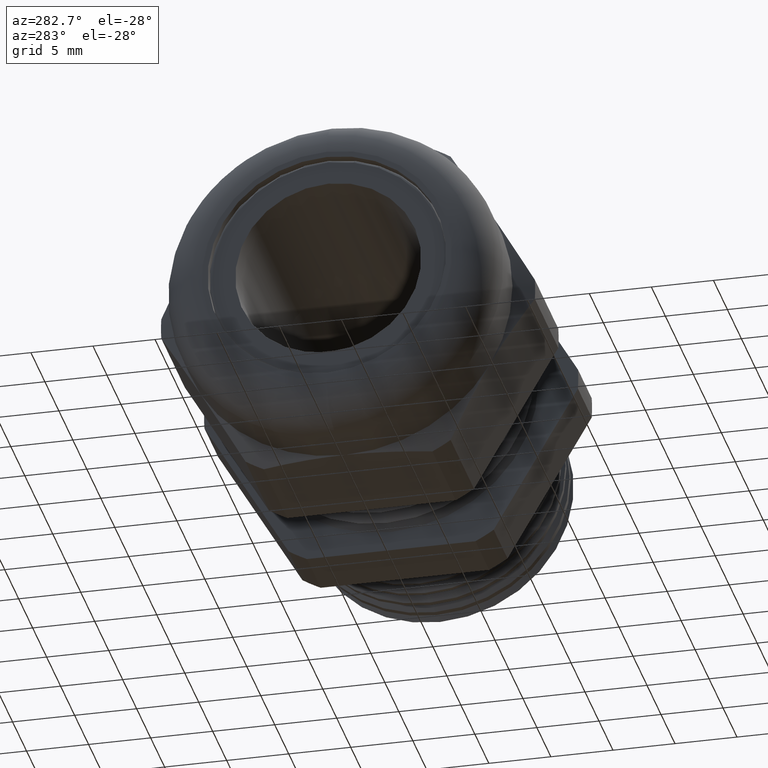
[diagram: clean part render]
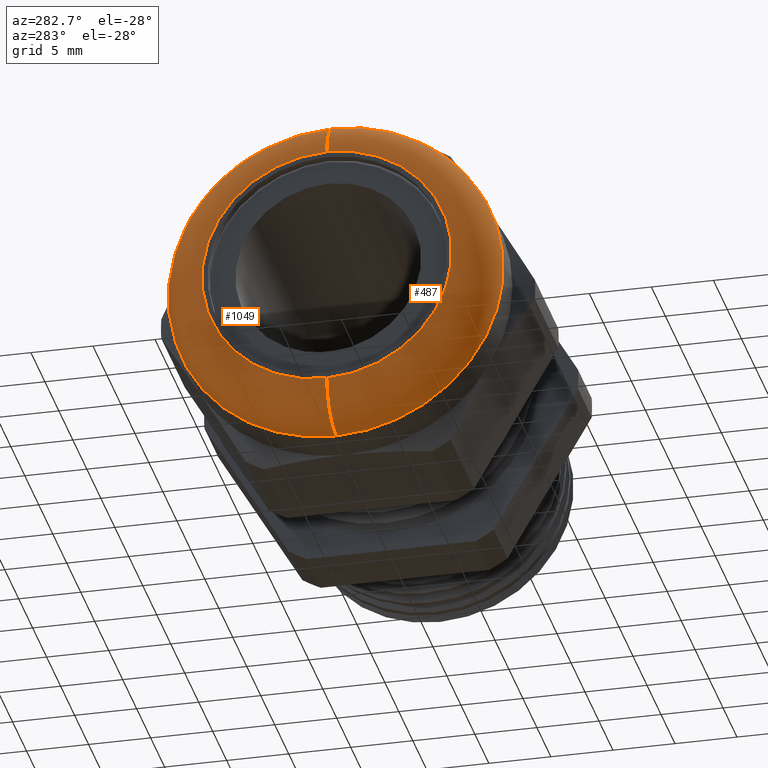
[diagram: same view with one multi-face feature highlighted, each face labeled with its STEP entity id]
A machine part, auxiliary view. The highlighted faces form ONE feature: a constant-radius fillet chain: 2 tangent blend faces with common blend radius 3.3934 mm. The faces share edges in the B-rep.
Their STEP definitions:
[1] entity #1049 (Torus):
#989 = ORIENTED_EDGE ( 'NONE', *, *, #990, .T. ) ;
#990 = EDGE_CURVE ( 'NONE', #1069, #991, #2968, .T. ) ;
#991 = VERTEX_POINT ( 'NONE', #2963 ) ;
#1031 = ORIENTED_EDGE ( 'NONE', *, *, #1032, .F. ) ;
#1032 = EDGE_CURVE ( 'NONE', #1033, #991, #3064, .T. ) ;
#1033 = VERTEX_POINT ( 'NONE', #3059 ) ;
#1034 = ORIENTED_EDGE ( 'NONE', *, *, #1035, .F. ) ;
#1035 = EDGE_CURVE ( 'NONE', #1070, #1033, #3057, .T. ) ;
#1049 = ADVANCED_FACE ( 'NONE', ( #3092 ), #3090, .T. ) ;
#1050 = EDGE_LOOP ( 'NONE', ( #1051, #989, #1031, #1034 ) ) ;
#1051 = ORIENTED_EDGE ( 'NONE', *, *, #1052, .F. ) ;
#1052 = EDGE_CURVE ( 'NONE', #1069, #1070, #3086, .T. ) ;
#1069 = VERTEX_POINT ( 'NONE', #3119 ) ;
#1070 = VERTEX_POINT ( 'NONE', #3118 ) ;
#2963 = CARTESIAN_POINT ( 'NONE',  ( -0.9663999999999999300, 0.0000000000000000000, 0.5299999999999999200 ) ) ;
#2964 = DIRECTION ( 'NONE',  ( 0.0000000000000000000, 1.224646799147353700E-016, 1.000000000000000000 ) ) ;
#2965 = DIRECTION ( 'NONE',  ( 0.0000000000000000000, 1.000000000000000000, -1.224646799147353200E-016 ) ) ;
#2966 = CARTESIAN_POINT ( 'NONE',  ( -0.9663999999999999300, 4.854499911820106400E-017, 0.3963999999999998100 ) ) ;
#2967 = AXIS2_PLACEMENT_3D ( 'NONE', #2966, #2965, #2964 ) ;
#2968 = CIRCLE ( 'NONE', #2967, 0.1336000000000001100 ) ;
#3053 = DIRECTION ( 'NONE',  ( 0.0000000000000000000, 0.0000000000000000000, -1.000000000000000000 ) ) ;
#3054 = DIRECTION ( 'NONE',  ( 0.0000000000000000000, -1.000000000000000000, 0.0000000000000000000 ) ) ;
#3055 = CARTESIAN_POINT ( 'NONE',  ( -0.9663999999999999300, 0.0000000000000000000, -0.3963999999999998100 ) ) ;
#3056 = AXIS2_PLACEMENT_3D ( 'NONE', #3055, #3054, #3053 ) ;
#3057 = CIRCLE ( 'NONE', #3056, 0.1336000000000001100 ) ;
#3059 = CARTESIAN_POINT ( 'NONE',  ( -0.9663999999999999300, 6.490628035480971200E-017, -0.5299999999999999200 ) ) ;
#3060 = DIRECTION ( 'NONE',  ( 0.0000000000000000000, 0.0000000000000000000, -1.000000000000000000 ) ) ;
#3061 = DIRECTION ( 'NONE',  ( 1.000000000000000000, 0.0000000000000000000, 0.0000000000000000000 ) ) ;
#3062 = CARTESIAN_POINT ( 'NONE',  ( -0.9663999999999999300, 0.0000000000000000000, 0.0000000000000000000 ) ) ;
#3063 = AXIS2_PLACEMENT_3D ( 'NONE', #3062, #3061, #3060 ) ;
#3064 = CIRCLE ( 'NONE', #3063, 0.5299999999999999200 ) ;
#3082 = DIRECTION ( 'NONE',  ( 0.0000000000000000000, 0.0000000000000000000, -1.000000000000000000 ) ) ;
#3083 = DIRECTION ( 'NONE',  ( -1.000000000000000000, 0.0000000000000000000, 0.0000000000000000000 ) ) ;
#3084 = CARTESIAN_POINT ( 'NONE',  ( -1.100000000000000100, 0.0000000000000000000, 0.0000000000000000000 ) ) ;
#3085 = AXIS2_PLACEMENT_3D ( 'NONE', #3084, #3083, #3082 ) ;
#3086 = CIRCLE ( 'NONE', #3085, 0.3963999999999998100 ) ;
#3087 = DIRECTION ( 'NONE',  ( 0.0000000000000000000, 0.0000000000000000000, -1.000000000000000000 ) ) ;
#3088 = DIRECTION ( 'NONE',  ( 1.000000000000000000, 0.0000000000000000000, 0.0000000000000000000 ) ) ;
#3089 = AXIS2_PLACEMENT_3D ( 'NONE', #3091, #3088, #3087 ) ;
#3090 = TOROIDAL_SURFACE ( 'NONE', #3089, 0.3963999999999998100, 0.1336000000000001400 ) ;
#3091 = CARTESIAN_POINT ( 'NONE',  ( -0.9663999999999999300, 0.0000000000000000000, 0.0000000000000000000 ) ) ;
#3092 = FACE_OUTER_BOUND ( 'NONE', #1050, .T. ) ;
#3118 = CARTESIAN_POINT ( 'NONE',  ( -1.100000000000000100, 0.0000000000000000000, -0.3963999999999998100 ) ) ;
#3119 = CARTESIAN_POINT ( 'NONE',  ( -1.100000000000000100, 5.672563973650537800E-017, 0.3963999999999998100 ) ) ;
[2] entity #487 (Torus):
#463 = EDGE_CURVE ( 'NONE', #991, #1033, #2058, .T. ) ;
#487 = ADVANCED_FACE ( 'NONE', ( #2087 ), #2086, .T. ) ;
#488 = EDGE_LOOP ( 'NONE', ( #489, #490, #491, #492 ) ) ;
#489 = ORIENTED_EDGE ( 'NONE', *, *, #990, .F. ) ;
#490 = ORIENTED_EDGE ( 'NONE', *, *, #3513, .F. ) ;
#491 = ORIENTED_EDGE ( 'NONE', *, *, #1035, .T. ) ;
#492 = ORIENTED_EDGE ( 'NONE', *, *, #463, .F. ) ;
#990 = EDGE_CURVE ( 'NONE', #1069, #991, #2968, .T. ) ;
#991 = VERTEX_POINT ( 'NONE', #2963 ) ;
#1033 = VERTEX_POINT ( 'NONE', #3059 ) ;
#1035 = EDGE_CURVE ( 'NONE', #1070, #1033, #3057, .T. ) ;
#1069 = VERTEX_POINT ( 'NONE', #3119 ) ;
#1070 = VERTEX_POINT ( 'NONE', #3118 ) ;
#2054 = DIRECTION ( 'NONE',  ( 0.0000000000000000000, 0.0000000000000000000, -1.000000000000000000 ) ) ;
#2055 = DIRECTION ( 'NONE',  ( 1.000000000000000000, 0.0000000000000000000, 0.0000000000000000000 ) ) ;
#2056 = CARTESIAN_POINT ( 'NONE',  ( -0.9663999999999999300, 0.0000000000000000000, 0.0000000000000000000 ) ) ;
#2057 = AXIS2_PLACEMENT_3D ( 'NONE', #2056, #2055, #2054 ) ;
#2058 = CIRCLE ( 'NONE', #2057, 0.5299999999999999200 ) ;
#2081 = DIRECTION ( 'NONE',  ( 0.0000000000000000000, 0.0000000000000000000, -1.000000000000000000 ) ) ;
#2082 = DIRECTION ( 'NONE',  ( 1.000000000000000000, 0.0000000000000000000, 0.0000000000000000000 ) ) ;
#2083 = CARTESIAN_POINT ( 'NONE',  ( -0.9663999999999999300, 0.0000000000000000000, 0.0000000000000000000 ) ) ;
#2084 = AXIS2_PLACEMENT_3D ( 'NONE', #2083, #2082, #2081 ) ;
#2086 = TOROIDAL_SURFACE ( 'NONE', #2084, 0.3963999999999998100, 0.1336000000000001400 ) ;
#2087 = FACE_OUTER_BOUND ( 'NONE', #488, .T. ) ;
#2963 = CARTESIAN_POINT ( 'NONE',  ( -0.9663999999999999300, 0.0000000000000000000, 0.5299999999999999200 ) ) ;
#2964 = DIRECTION ( 'NONE',  ( 0.0000000000000000000, 1.224646799147353700E-016, 1.000000000000000000 ) ) ;
#2965 = DIRECTION ( 'NONE',  ( 0.0000000000000000000, 1.000000000000000000, -1.224646799147353200E-016 ) ) ;
#2966 = CARTESIAN_POINT ( 'NONE',  ( -0.9663999999999999300, 4.854499911820106400E-017, 0.3963999999999998100 ) ) ;
#2967 = AXIS2_PLACEMENT_3D ( 'NONE', #2966, #2965, #2964 ) ;
#2968 = CIRCLE ( 'NONE', #2967, 0.1336000000000001100 ) ;
#3053 = DIRECTION ( 'NONE',  ( 0.0000000000000000000, 0.0000000000000000000, -1.000000000000000000 ) ) ;
#3054 = DIRECTION ( 'NONE',  ( 0.0000000000000000000, -1.000000000000000000, 0.0000000000000000000 ) ) ;
#3055 = CARTESIAN_POINT ( 'NONE',  ( -0.9663999999999999300, 0.0000000000000000000, -0.3963999999999998100 ) ) ;
#3056 = AXIS2_PLACEMENT_3D ( 'NONE', #3055, #3054, #3053 ) ;
#3057 = CIRCLE ( 'NONE', #3056, 0.1336000000000001100 ) ;
#3059 = CARTESIAN_POINT ( 'NONE',  ( -0.9663999999999999300, 6.490628035480971200E-017, -0.5299999999999999200 ) ) ;
#3118 = CARTESIAN_POINT ( 'NONE',  ( -1.100000000000000100, 0.0000000000000000000, -0.3963999999999998100 ) ) ;
#3119 = CARTESIAN_POINT ( 'NONE',  ( -1.100000000000000100, 5.672563973650537800E-017, 0.3963999999999998100 ) ) ;
#3356 = DIRECTION ( 'NONE',  ( 0.0000000000000000000, 0.0000000000000000000, -1.000000000000000000 ) ) ;
#3357 = DIRECTION ( 'NONE',  ( -1.000000000000000000, 0.0000000000000000000, 0.0000000000000000000 ) ) ;
#3358 = CARTESIAN_POINT ( 'NONE',  ( -1.100000000000000100, 0.0000000000000000000, 0.0000000000000000000 ) ) ;
#3359 = AXIS2_PLACEMENT_3D ( 'NONE', #3358, #3357, #3356 ) ;
#3360 = CIRCLE ( 'NONE', #3359, 0.3963999999999998100 ) ;
#3513 = EDGE_CURVE ( 'NONE', #1070, #1069, #3360, .T. ) ;